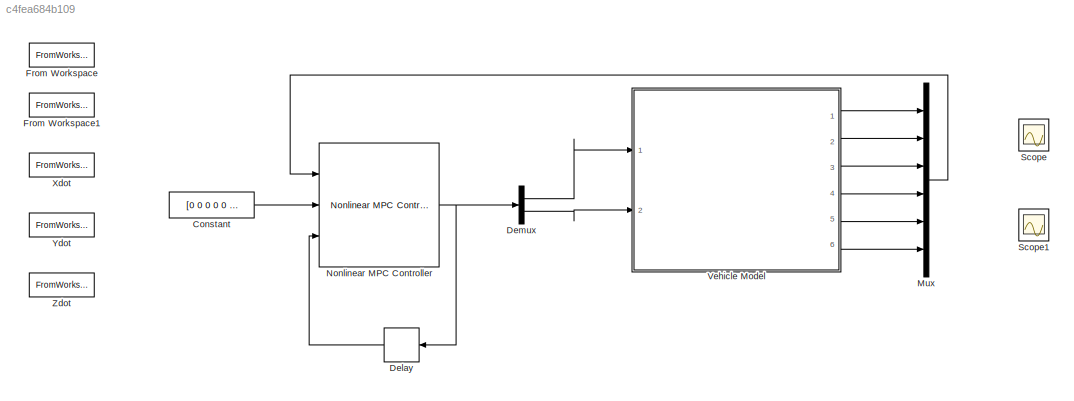
MODEL slx_c4fea684b109
KIND model
CONFIG AbsTol = auto
CONFIG EnableMultiTasking = off
CONFIG FixedStep = auto
CONFIG MaxStep = auto
CONFIG MinStep = auto
CONFIG RelTol = 1e-3
CONFIG SampleTimeConstraint = Unconstrained
CONFIG SolverName = VariableStepAuto
CONFIG StartTime = 0.0
CONFIG StopTime = 10
BLOCK [Constant] Constant
  Value = [0 0 0 0 0 0]
  VectorParams1D = off
BLOCK [Delay] Delay
  DelayLength = 1
  InitialCondition = [0.2 0.3]
  InputPortMap = u0
  Ports = [1, 1]
BLOCK [Demux] Demux
  Outputs = 2
  Ports = [1, 2]
BLOCK [FromWorkspace] From Workspace
  Commented = on
  VariableName = u1
BLOCK [FromWorkspace] From Workspace1
  Commented = on
  VariableName = u2
BLOCK [Mux] Mux
  DisplayOption = bar
  Inputs = 6
  Ports = [6, 1]
BLOCK [Reference] Nonlinear MPC Controller  REF=mpclib/Nonlinear MPC Controller  (lib defined in mdl_ae329e0e0455)
  Ports = [3, 1]
  SCDEnableBlockLinearizationSpecification = on
  SourceBlock = mpclib/Nonlinear MPC Controller
  SourceProductBaseCode = MP
  SourceType = NonlinearMPC
BLOCK [Scope] Scope
  Commented = on
  Floating = off
  NumInputPorts = 1
  Ports = [1]
  ScopeSpecificationString = Simulink.scopes.TimeScopeBlockCfg('CurrentConfiguration', extmgr.ConfigurationSet(extmgr.Configuration('Core','General UI',true),extmgr.Configuration('Core','Source UI',true),extmgr.Configuration('Sources','WiredSimulink',true),extmgr.Configuration('Visuals','Time Domain',true),extmgr.Configuration('Tools','Plot Navigation',true),extmgr.Configuration('Tools','Measurements',true)),'Version','2021a'...<+1ch>
BLOCK [Scope] Scope1
  Commented = on
  Floating = off
  NumInputPorts = 1
  Ports = [1]
  ScopeSpecificationString = Simulink.scopes.TimeScopeBlockCfg('CurrentConfiguration', extmgr.ConfigurationSet(extmgr.Configuration('Core','General UI',true),extmgr.Configuration('Core','Source UI',true),extmgr.Configuration('Sources','WiredSimulink',true,'DataLoggingVariableName','ScopeData1'),extmgr.Configuration('Visuals','Time Domain',true),extmgr.Configuration('Tools','Plot Navigation',true),extmgr.Configuration('Tools',...<+40ch>
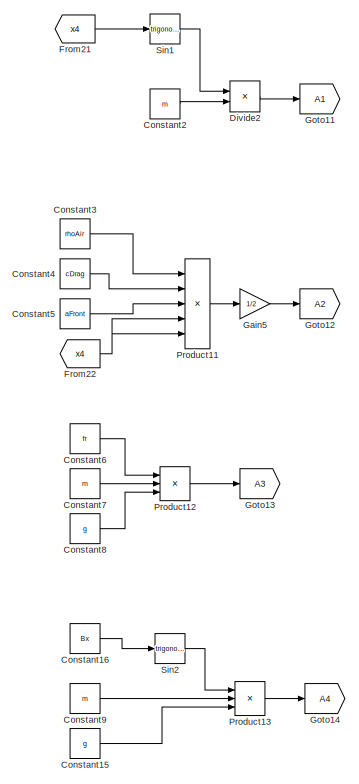
[diagram: Vehicle Model - part 1/5, top left region]
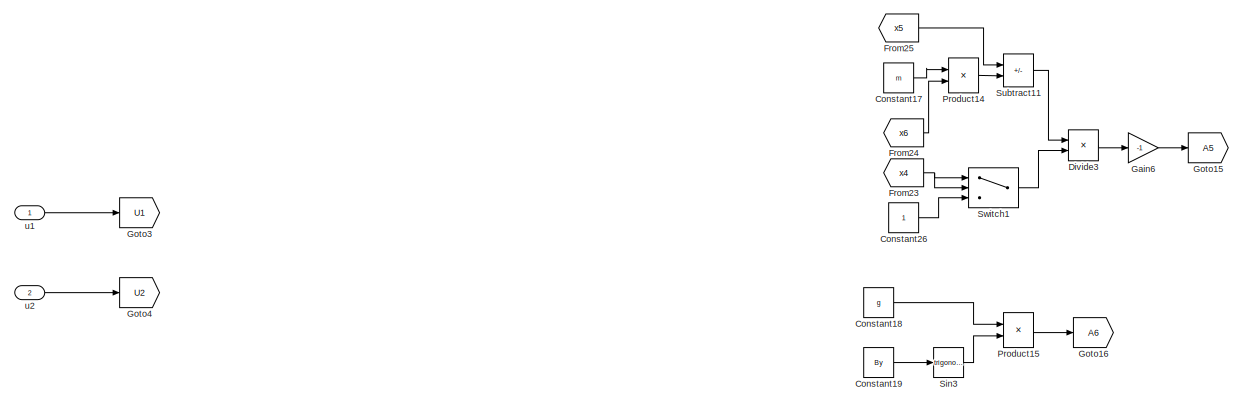
[diagram: Vehicle Model - part 2/5, middle left region]
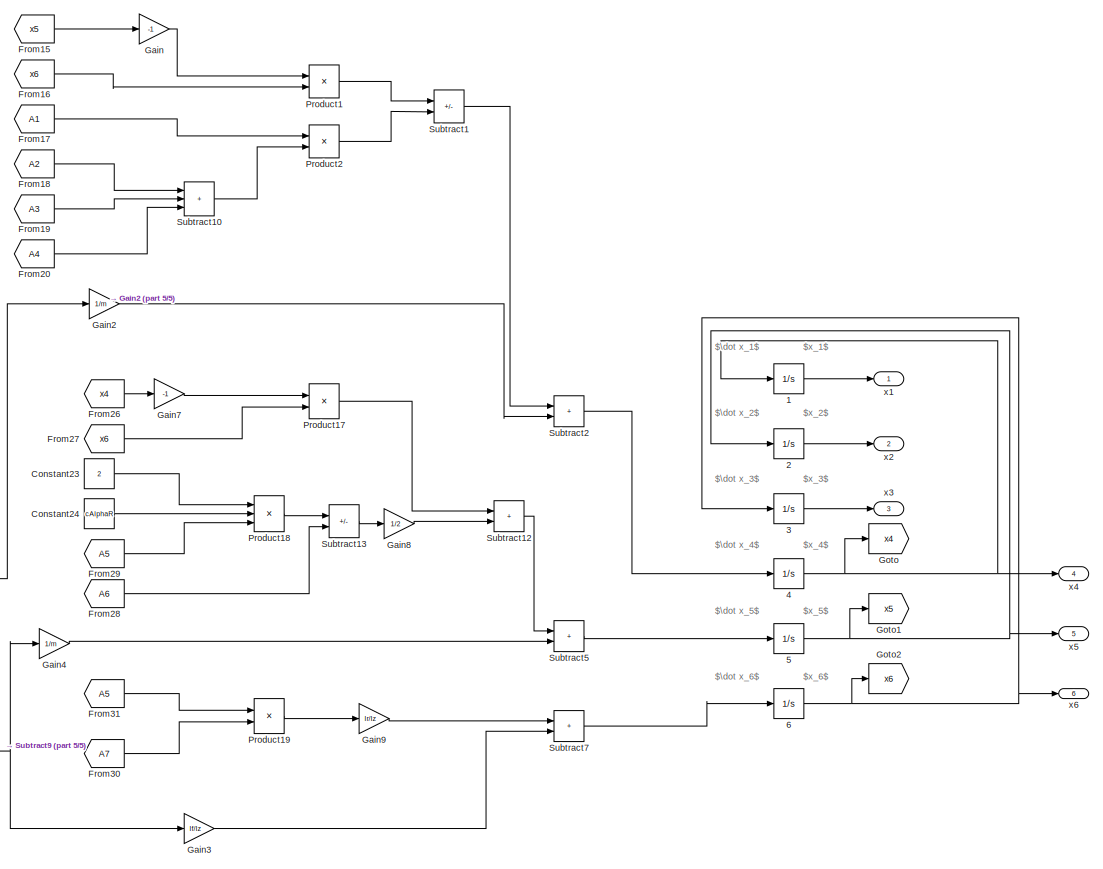
[diagram: Vehicle Model - part 3/5, middle right region]
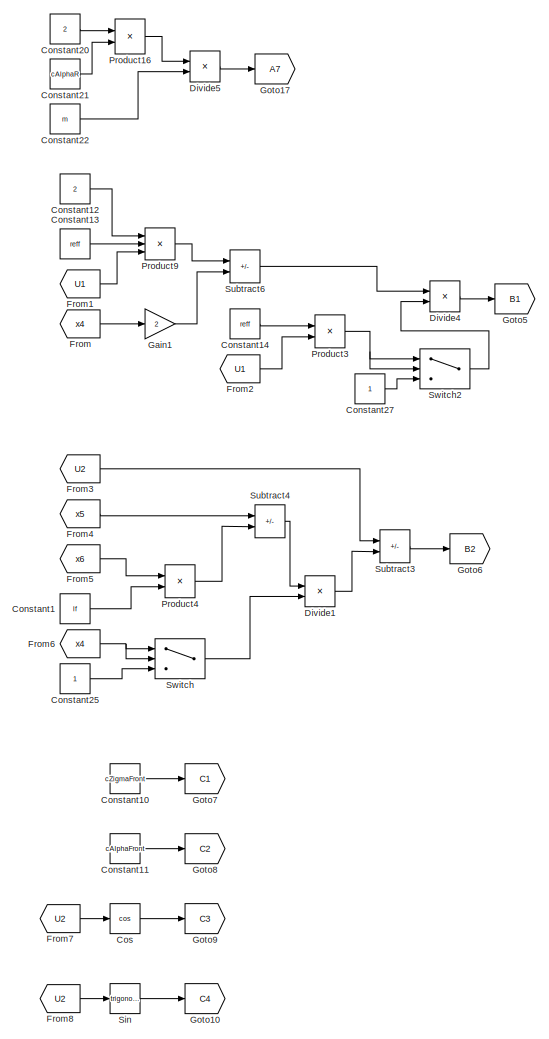
[diagram: Vehicle Model - part 4/5, bottom center region]
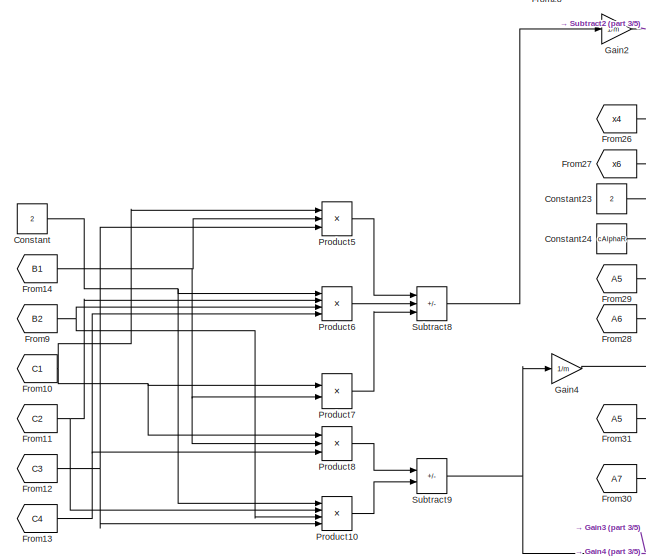
[diagram: Vehicle Model - part 5/5, bottom center region]
BLOCK [SubSystem] Vehicle Model
  Ports = [2, 6]
  RequestExecContextInheritance = off
BLOCK [Integrator] Vehicle Model/1
  Ports = [1, 1]
BLOCK [Integrator] Vehicle Model/2
  Ports = [1, 1]
BLOCK [Integrator] Vehicle Model/3
  Ports = [1, 1]
BLOCK [Integrator] Vehicle Model/4
  Ports = [1, 1]
BLOCK [Integrator] Vehicle Model/5
  Ports = [1, 1]
BLOCK [Integrator] Vehicle Model/6
  Ports = [1, 1]
BLOCK [Constant] Vehicle Model/Constant
  Value = 2
BLOCK [Constant] Vehicle Model/Constant1
  Value = lf
BLOCK [Constant] Vehicle Model/Constant10
  Value = cZigmaFront
BLOCK [Constant] Vehicle Model/Constant11
  Value = cAlphaFront
BLOCK [Constant] Vehicle Model/Constant12
  Value = 2
BLOCK [Constant] Vehicle Model/Constant13
  Value = reff
BLOCK [Constant] Vehicle Model/Constant14
  Value = reff
BLOCK [Constant] Vehicle Model/Constant15
  Value = g
BLOCK [Constant] Vehicle Model/Constant16
  Value = Bx
BLOCK [Constant] Vehicle Model/Constant17
  Value = m
BLOCK [Constant] Vehicle Model/Constant18
  Value = g
BLOCK [Constant] Vehicle Model/Constant19
  Value = By
BLOCK [Constant] Vehicle Model/Constant2
  Value = m
BLOCK [Constant] Vehicle Model/Constant20
  Value = 2
BLOCK [Constant] Vehicle Model/Constant21
  Value = cAlphaR
BLOCK [Constant] Vehicle Model/Constant22
  Value = m
BLOCK [Constant] Vehicle Model/Constant23
  Value = 2
BLOCK [Constant] Vehicle Model/Constant24
  Value = cAlphaR
BLOCK [Constant] Vehicle Model/Constant25
BLOCK [Constant] Vehicle Model/Constant26
BLOCK [Constant] Vehicle Model/Constant27
BLOCK [Constant] Vehicle Model/Constant3
  Value = rhoAir
BLOCK [Constant] Vehicle Model/Constant4
  Value = cDrag
BLOCK [Constant] Vehicle Model/Constant5
  Value = aFront
BLOCK [Constant] Vehicle Model/Constant6
  Value = fr
BLOCK [Constant] Vehicle Model/Constant7
  Value = m
BLOCK [Constant] Vehicle Model/Constant8
  Value = g
BLOCK [Constant] Vehicle Model/Constant9
  Value = m
BLOCK [Trigonometry] Vehicle Model/Cos
  Operator = cos
  Ports = [1, 1]
BLOCK [Product] Vehicle Model/Divide1
  Inputs = */
  Ports = [2, 1]
BLOCK [Product] Vehicle Model/Divide2
  Inputs = */
  Ports = [2, 1]
BLOCK [Product] Vehicle Model/Divide3
  Inputs = */
  Ports = [2, 1]
BLOCK [Product] Vehicle Model/Divide4
  Inputs = */
  Ports = [2, 1]
BLOCK [Product] Vehicle Model/Divide5
  Inputs = */
  Ports = [2, 1]
BLOCK [From] Vehicle Model/From
  GotoTag = x4
BLOCK [From] Vehicle Model/From1
  GotoTag = U1
BLOCK [From] Vehicle Model/From10
  GotoTag = C1
BLOCK [From] Vehicle Model/From11
  GotoTag = C2
BLOCK [From] Vehicle Model/From12
  GotoTag = C3
BLOCK [From] Vehicle Model/From13
  GotoTag = C4
BLOCK [From] Vehicle Model/From14
  GotoTag = B1
BLOCK [From] Vehicle Model/From15
  GotoTag = x5
BLOCK [From] Vehicle Model/From16
  GotoTag = x6
BLOCK [From] Vehicle Model/From17
  GotoTag = A1
BLOCK [From] Vehicle Model/From18
  GotoTag = A2
BLOCK [From] Vehicle Model/From19
  GotoTag = A3
BLOCK [From] Vehicle Model/From2
  GotoTag = U1
BLOCK [From] Vehicle Model/From20
  GotoTag = A4
BLOCK [From] Vehicle Model/From21
  GotoTag = x4
BLOCK [From] Vehicle Model/From22
  GotoTag = x4
BLOCK [From] Vehicle Model/From23
  GotoTag = x4
BLOCK [From] Vehicle Model/From24
  GotoTag = x6
BLOCK [From] Vehicle Model/From25
  GotoTag = x5
BLOCK [From] Vehicle Model/From26
  GotoTag = x4
BLOCK [From] Vehicle Model/From27
  GotoTag = x6
BLOCK [From] Vehicle Model/From28
  GotoTag = A6
BLOCK [From] Vehicle Model/From29
  GotoTag = A5
BLOCK [From] Vehicle Model/From3
  GotoTag = U2
BLOCK [From] Vehicle Model/From30
  GotoTag = A7
BLOCK [From] Vehicle Model/From31
  GotoTag = A5
BLOCK [From] Vehicle Model/From4
  GotoTag = x5
BLOCK [From] Vehicle Model/From5
  GotoTag = x6
BLOCK [From] Vehicle Model/From6
  GotoTag = x4
BLOCK [From] Vehicle Model/From7
  GotoTag = U2
BLOCK [From] Vehicle Model/From8
  GotoTag = U2
BLOCK [From] Vehicle Model/From9
  GotoTag = B2
BLOCK [Gain] Vehicle Model/Gain
  Gain = -1
BLOCK [Gain] Vehicle Model/Gain1
  Gain = 2
BLOCK [Gain] Vehicle Model/Gain2
  Gain = 1/m
BLOCK [Gain] Vehicle Model/Gain3
  Gain = lf/Iz
BLOCK [Gain] Vehicle Model/Gain4
  Gain = 1/m
BLOCK [Gain] Vehicle Model/Gain5
  Gain = 1/2
BLOCK [Gain] Vehicle Model/Gain6
  Gain = -1
BLOCK [Gain] Vehicle Model/Gain7
  Gain = -1
BLOCK [Gain] Vehicle Model/Gain8
  Gain = 1/2
BLOCK [Gain] Vehicle Model/Gain9
  Gain = lr/Iz
BLOCK [Goto] Vehicle Model/Goto
  GotoTag = x4
BLOCK [Goto] Vehicle Model/Goto1
  GotoTag = x5
BLOCK [Goto] Vehicle Model/Goto10
  GotoTag = C4
BLOCK [Goto] Vehicle Model/Goto11
  GotoTag = A1
BLOCK [Goto] Vehicle Model/Goto12
  GotoTag = A2
BLOCK [Goto] Vehicle Model/Goto13
  GotoTag = A3
BLOCK [Goto] Vehicle Model/Goto14
  GotoTag = A4
BLOCK [Goto] Vehicle Model/Goto15
  GotoTag = A5
BLOCK [Goto] Vehicle Model/Goto16
  GotoTag = A6
BLOCK [Goto] Vehicle Model/Goto17
  GotoTag = A7
BLOCK [Goto] Vehicle Model/Goto2
  GotoTag = x6
BLOCK [Goto] Vehicle Model/Goto3
  GotoTag = U1
BLOCK [Goto] Vehicle Model/Goto4
  GotoTag = U2
BLOCK [Goto] Vehicle Model/Goto5
  GotoTag = B1
BLOCK [Goto] Vehicle Model/Goto6
  GotoTag = B2
BLOCK [Goto] Vehicle Model/Goto7
  GotoTag = C1
BLOCK [Goto] Vehicle Model/Goto8
  GotoTag = C2
BLOCK [Goto] Vehicle Model/Goto9
  GotoTag = C3
BLOCK [Product] Vehicle Model/Product1
  Ports = [2, 1]
BLOCK [Product] Vehicle Model/Product10
  Inputs = 4
  Ports = [4, 1]
BLOCK [Product] Vehicle Model/Product11
  Inputs = 5
  Ports = [5, 1]
BLOCK [Product] Vehicle Model/Product12
  Inputs = 3
  Ports = [3, 1]
BLOCK [Product] Vehicle Model/Product13
  Inputs = 3
  Ports = [3, 1]
BLOCK [Product] Vehicle Model/Product14
  Ports = [2, 1]
BLOCK [Product] Vehicle Model/Product15
  Ports = [2, 1]
BLOCK [Product] Vehicle Model/Product16
  Ports = [2, 1]
BLOCK [Product] Vehicle Model/Product17
  Ports = [2, 1]
BLOCK [Product] Vehicle Model/Product18
  Inputs = 3
  Ports = [3, 1]
BLOCK [Product] Vehicle Model/Product19
  Ports = [2, 1]
BLOCK [Product] Vehicle Model/Product2
  Ports = [2, 1]
BLOCK [Product] Vehicle Model/Product3
  Ports = [2, 1]
BLOCK [Product] Vehicle Model/Product4
  Ports = [2, 1]
BLOCK [Product] Vehicle Model/Product5
  Inputs = 3
  Ports = [3, 1]
BLOCK [Product] Vehicle Model/Product6
  Inputs = 4
  Ports = [4, 1]
BLOCK [Product] Vehicle Model/Product7
  Ports = [2, 1]
BLOCK [Product] Vehicle Model/Product8
  Inputs = 3
  Ports = [3, 1]
BLOCK [Product] Vehicle Model/Product9
  Inputs = 3
  Ports = [3, 1]
BLOCK [Trigonometry] Vehicle Model/Sin
  Ports = [1, 1]
BLOCK [Trigonometry] Vehicle Model/Sin1
  Ports = [1, 1]
BLOCK [Trigonometry] Vehicle Model/Sin2
  Ports = [1, 1]
BLOCK [Trigonometry] Vehicle Model/Sin3
  Ports = [1, 1]
BLOCK [Sum] Vehicle Model/Subtract1
  IconShape = rectangular
  Inputs = +-
  Ports = [2, 1]
BLOCK [Sum] Vehicle Model/Subtract10
  IconShape = rectangular
  Inputs = +++
  Ports = [3, 1]
BLOCK [Sum] Vehicle Model/Subtract11
  IconShape = rectangular
  Inputs = +-
  Ports = [2, 1]
BLOCK [Sum] Vehicle Model/Subtract12
  IconShape = rectangular
  Ports = [2, 1]
BLOCK [Sum] Vehicle Model/Subtract13
  IconShape = rectangular
  Inputs = +-
  Ports = [2, 1]
BLOCK [Sum] Vehicle Model/Subtract2
  IconShape = rectangular
  Ports = [2, 1]
BLOCK [Sum] Vehicle Model/Subtract3
  IconShape = rectangular
  Inputs = +-
  Ports = [2, 1]
BLOCK [Sum] Vehicle Model/Subtract4
  IconShape = rectangular
  Inputs = -+
  Ports = [2, 1]
BLOCK [Sum] Vehicle Model/Subtract5
  IconShape = rectangular
  Ports = [2, 1]
BLOCK [Sum] Vehicle Model/Subtract6
  IconShape = rectangular
  Inputs = +-
  Ports = [2, 1]
BLOCK [Sum] Vehicle Model/Subtract7
  IconShape = rectangular
  Ports = [2, 1]
BLOCK [Sum] Vehicle Model/Subtract8
  IconShape = rectangular
  Inputs = +-+
  Ports = [3, 1]
BLOCK [Sum] Vehicle Model/Subtract9
  IconShape = rectangular
  Inputs = +-
  Ports = [2, 1]
BLOCK [Switch] Vehicle Model/Switch
  Criteria = u2 > Threshold
  InputSameDT = off
  SaturateOnIntegerOverflow = off
BLOCK [Switch] Vehicle Model/Switch1
  Criteria = u2 > Threshold
  InputSameDT = off
  SaturateOnIntegerOverflow = off
BLOCK [Switch] Vehicle Model/Switch2
  Criteria = u2 > Threshold
  InputSameDT = off
  SaturateOnIntegerOverflow = off
BLOCK [Inport] Vehicle Model/u1
BLOCK [Inport] Vehicle Model/u2
  Port = 2
BLOCK [Outport] Vehicle Model/x1
BLOCK [Outport] Vehicle Model/x2
  Port = 2
BLOCK [Outport] Vehicle Model/x3
  Port = 3
BLOCK [Outport] Vehicle Model/x4
  Port = 4
BLOCK [Outport] Vehicle Model/x5
  Port = 5
BLOCK [Outport] Vehicle Model/x6
  Port = 6
BLOCK [FromWorkspace] Xdot
  Commented = on
  VariableName = Xdot
BLOCK [FromWorkspace] Ydot
  Commented = on
  VariableName = Ydot
BLOCK [FromWorkspace] Zdot
  Commented = on
  VariableName = Zdot
ANNOTATION Vehicle Model: $\dot x_1$
ANNOTATION Vehicle Model: $\dot x_2$
ANNOTATION Vehicle Model: $\dot x_3$
ANNOTATION Vehicle Model: $\dot x_4$
ANNOTATION Vehicle Model: $\dot x_5$
ANNOTATION Vehicle Model: $\dot x_6$
ANNOTATION Vehicle Model: $x_1$
ANNOTATION Vehicle Model: $x_2$
ANNOTATION Vehicle Model: $x_3$
ANNOTATION Vehicle Model: $x_4$
ANNOTATION Vehicle Model: $x_5$
ANNOTATION Vehicle Model: $x_6$
LINE Constant:1 -> Nonlinear MPC Controller:2
LINE Delay:1 -> Nonlinear MPC Controller:3
LINE Demux:1 -> Vehicle Model:1
LINE Demux:2 -> Vehicle Model:2
LINE Mux:1 -> Nonlinear MPC Controller:1
NET Nonlinear MPC Controller:1 -> Delay:1, Demux:1
LINE Vehicle Model/1:1 -> Vehicle Model/x1:1
LINE Vehicle Model/2:1 -> Vehicle Model/x2:1
LINE Vehicle Model/3:1 -> Vehicle Model/x3:1
NET Vehicle Model/4:1 -> Vehicle Model/1:1, Vehicle Model/Goto:1, Vehicle Model/x4:1
NET Vehicle Model/5:1 -> Vehicle Model/2:1, Vehicle Model/Goto1:1, Vehicle Model/x5:1
NET Vehicle Model/6:1 -> Vehicle Model/3:1, Vehicle Model/Goto2:1, Vehicle Model/x6:1
LINE Vehicle Model/Constant10:1 -> Vehicle Model/Goto7:1
LINE Vehicle Model/Constant11:1 -> Vehicle Model/Goto8:1
LINE Vehicle Model/Constant12:1 -> Vehicle Model/Product9:1
LINE Vehicle Model/Constant13:1 -> Vehicle Model/Product9:2
LINE Vehicle Model/Constant14:1 -> Vehicle Model/Product3:1
LINE Vehicle Model/Constant15:1 -> Vehicle Model/Product13:3
LINE Vehicle Model/Constant16:1 -> Vehicle Model/Sin2:1
LINE Vehicle Model/Constant17:1 -> Vehicle Model/Product14:1
LINE Vehicle Model/Constant18:1 -> Vehicle Model/Product15:1
LINE Vehicle Model/Constant19:1 -> Vehicle Model/Sin3:1
LINE Vehicle Model/Constant1:1 -> Vehicle Model/Product4:2
LINE Vehicle Model/Constant20:1 -> Vehicle Model/Product16:1
LINE Vehicle Model/Constant21:1 -> Vehicle Model/Product16:2
LINE Vehicle Model/Constant22:1 -> Vehicle Model/Divide5:2
LINE Vehicle Model/Constant23:1 -> Vehicle Model/Product18:1
LINE Vehicle Model/Constant24:1 -> Vehicle Model/Product18:2
LINE Vehicle Model/Constant25:1 -> Vehicle Model/Switch:3
LINE Vehicle Model/Constant26:1 -> Vehicle Model/Switch1:3
LINE Vehicle Model/Constant27:1 -> Vehicle Model/Switch2:3
LINE Vehicle Model/Constant2:1 -> Vehicle Model/Divide2:2
LINE Vehicle Model/Constant3:1 -> Vehicle Model/Product11:1
LINE Vehicle Model/Constant4:1 -> Vehicle Model/Product11:2
LINE Vehicle Model/Constant5:1 -> Vehicle Model/Product11:3
LINE Vehicle Model/Constant6:1 -> Vehicle Model/Product12:1
LINE Vehicle Model/Constant7:1 -> Vehicle Model/Product12:2
LINE Vehicle Model/Constant8:1 -> Vehicle Model/Product12:3
LINE Vehicle Model/Constant9:1 -> Vehicle Model/Product13:2
NET Vehicle Model/Constant:1 -> Vehicle Model/Product10:1, Vehicle Model/Product6:1
LINE Vehicle Model/Cos:1 -> Vehicle Model/Goto9:1
LINE Vehicle Model/Divide1:1 -> Vehicle Model/Subtract3:2
LINE Vehicle Model/Divide2:1 -> Vehicle Model/Goto11:1
LINE Vehicle Model/Divide3:1 -> Vehicle Model/Gain6:1
LINE Vehicle Model/Divide4:1 -> Vehicle Model/Goto5:1
LINE Vehicle Model/Divide5:1 -> Vehicle Model/Goto17:1
NET Vehicle Model/From10:1 -> Vehicle Model/Product5:1, Vehicle Model/Product7:1, Vehicle Model/Product8:1
NET Vehicle Model/From11:1 -> Vehicle Model/Product10:2, Vehicle Model/Product6:2
NET Vehicle Model/From12:1 -> Vehicle Model/Product10:4, Vehicle Model/Product5:3
NET Vehicle Model/From13:1 -> Vehicle Model/Product6:4, Vehicle Model/Product8:3
NET Vehicle Model/From14:1 -> Vehicle Model/Product5:2, Vehicle Model/Product7:2, Vehicle Model/Product8:2
LINE Vehicle Model/From15:1 -> Vehicle Model/Gain:1
LINE Vehicle Model/From16:1 -> Vehicle Model/Product1:2
LINE Vehicle Model/From17:1 -> Vehicle Model/Product2:1
LINE Vehicle Model/From18:1 -> Vehicle Model/Subtract10:1
LINE Vehicle Model/From19:1 -> Vehicle Model/Subtract10:2
LINE Vehicle Model/From1:1 -> Vehicle Model/Product9:3
LINE Vehicle Model/From20:1 -> Vehicle Model/Subtract10:3
LINE Vehicle Model/From21:1 -> Vehicle Model/Sin1:1
NET Vehicle Model/From22:1 -> Vehicle Model/Product11:4, Vehicle Model/Product11:5
NET Vehicle Model/From23:1 -> Vehicle Model/Switch1:1, Vehicle Model/Switch1:2
LINE Vehicle Model/From24:1 -> Vehicle Model/Product14:2
LINE Vehicle Model/From25:1 -> Vehicle Model/Subtract11:1
LINE Vehicle Model/From26:1 -> Vehicle Model/Gain7:1
LINE Vehicle Model/From27:1 -> Vehicle Model/Product17:2
LINE Vehicle Model/From28:1 -> Vehicle Model/Subtract13:2
LINE Vehicle Model/From29:1 -> Vehicle Model/Product18:3
LINE Vehicle Model/From2:1 -> Vehicle Model/Product3:2
LINE Vehicle Model/From30:1 -> Vehicle Model/Product19:2
LINE Vehicle Model/From31:1 -> Vehicle Model/Product19:1
LINE Vehicle Model/From3:1 -> Vehicle Model/Subtract3:1
LINE Vehicle Model/From4:1 -> Vehicle Model/Subtract4:1
LINE Vehicle Model/From5:1 -> Vehicle Model/Product4:1
NET Vehicle Model/From6:1 -> Vehicle Model/Switch:1, Vehicle Model/Switch:2
LINE Vehicle Model/From7:1 -> Vehicle Model/Cos:1
LINE Vehicle Model/From8:1 -> Vehicle Model/Sin:1
NET Vehicle Model/From9:1 -> Vehicle Model/Product10:3, Vehicle Model/Product6:3
LINE Vehicle Model/From:1 -> Vehicle Model/Gain1:1
LINE Vehicle Model/Gain1:1 -> Vehicle Model/Subtract6:2
LINE Vehicle Model/Gain2:1 -> Vehicle Model/Subtract2:2
LINE Vehicle Model/Gain3:1 -> Vehicle Model/Subtract7:2
LINE Vehicle Model/Gain4:1 -> Vehicle Model/Subtract5:2
LINE Vehicle Model/Gain5:1 -> Vehicle Model/Goto12:1
LINE Vehicle Model/Gain6:1 -> Vehicle Model/Goto15:1
LINE Vehicle Model/Gain7:1 -> Vehicle Model/Product17:1
LINE Vehicle Model/Gain8:1 -> Vehicle Model/Subtract12:2
LINE Vehicle Model/Gain9:1 -> Vehicle Model/Subtract7:1
LINE Vehicle Model/Gain:1 -> Vehicle Model/Product1:1
LINE Vehicle Model/Product10:1 -> Vehicle Model/Subtract9:2
LINE Vehicle Model/Product11:1 -> Vehicle Model/Gain5:1
LINE Vehicle Model/Product12:1 -> Vehicle Model/Goto13:1
LINE Vehicle Model/Product13:1 -> Vehicle Model/Goto14:1
LINE Vehicle Model/Product14:1 -> Vehicle Model/Subtract11:2
LINE Vehicle Model/Product15:1 -> Vehicle Model/Goto16:1
LINE Vehicle Model/Product16:1 -> Vehicle Model/Divide5:1
LINE Vehicle Model/Product17:1 -> Vehicle Model/Subtract12:1
LINE Vehicle Model/Product18:1 -> Vehicle Model/Subtract13:1
LINE Vehicle Model/Product19:1 -> Vehicle Model/Gain9:1
LINE Vehicle Model/Product1:1 -> Vehicle Model/Subtract1:1
LINE Vehicle Model/Product2:1 -> Vehicle Model/Subtract1:2
NET Vehicle Model/Product3:1 -> Vehicle Model/Switch2:1, Vehicle Model/Switch2:2
LINE Vehicle Model/Product4:1 -> Vehicle Model/Subtract4:2
LINE Vehicle Model/Product5:1 -> Vehicle Model/Subtract8:1
LINE Vehicle Model/Product6:1 -> Vehicle Model/Subtract8:2
LINE Vehicle Model/Product7:1 -> Vehicle Model/Subtract8:3
LINE Vehicle Model/Product8:1 -> Vehicle Model/Subtract9:1
LINE Vehicle Model/Product9:1 -> Vehicle Model/Subtract6:1
LINE Vehicle Model/Sin1:1 -> Vehicle Model/Divide2:1
LINE Vehicle Model/Sin2:1 -> Vehicle Model/Product13:1
LINE Vehicle Model/Sin3:1 -> Vehicle Model/Product15:2
LINE Vehicle Model/Sin:1 -> Vehicle Model/Goto10:1
LINE Vehicle Model/Subtract10:1 -> Vehicle Model/Product2:2
LINE Vehicle Model/Subtract11:1 -> Vehicle Model/Divide3:1
LINE Vehicle Model/Subtract12:1 -> Vehicle Model/Subtract5:1
LINE Vehicle Model/Subtract13:1 -> Vehicle Model/Gain8:1
LINE Vehicle Model/Subtract1:1 -> Vehicle Model/Subtract2:1
LINE Vehicle Model/Subtract2:1 -> Vehicle Model/4:1
LINE Vehicle Model/Subtract3:1 -> Vehicle Model/Goto6:1
LINE Vehicle Model/Subtract4:1 -> Vehicle Model/Divide1:1
LINE Vehicle Model/Subtract5:1 -> Vehicle Model/5:1
LINE Vehicle Model/Subtract6:1 -> Vehicle Model/Divide4:1
LINE Vehicle Model/Subtract7:1 -> Vehicle Model/6:1
LINE Vehicle Model/Subtract8:1 -> Vehicle Model/Gain2:1
NET Vehicle Model/Subtract9:1 -> Vehicle Model/Gain3:1, Vehicle Model/Gain4:1
LINE Vehicle Model/Switch1:1 -> Vehicle Model/Divide3:2
LINE Vehicle Model/Switch2:1 -> Vehicle Model/Divide4:2
LINE Vehicle Model/Switch:1 -> Vehicle Model/Divide1:2
LINE Vehicle Model/u1:1 -> Vehicle Model/Goto3:1
LINE Vehicle Model/u2:1 -> Vehicle Model/Goto4:1
LINE Vehicle Model:1 -> Mux:1
LINE Vehicle Model:2 -> Mux:2
LINE Vehicle Model:3 -> Mux:3
LINE Vehicle Model:4 -> Mux:4
LINE Vehicle Model:5 -> Mux:5
LINE Vehicle Model:6 -> Mux:6
note: NET lines group one-source signal fan-out (src -> all destinations, sorted); 1:1 wires keep LINE
